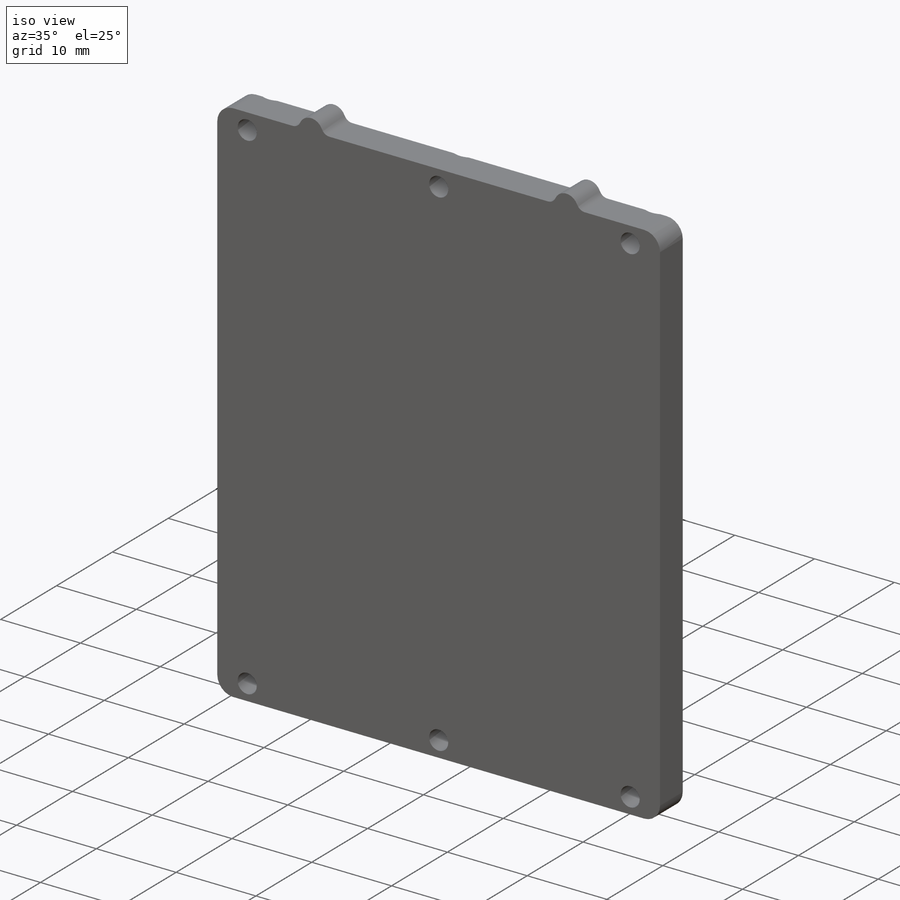
[diagram: iso view]
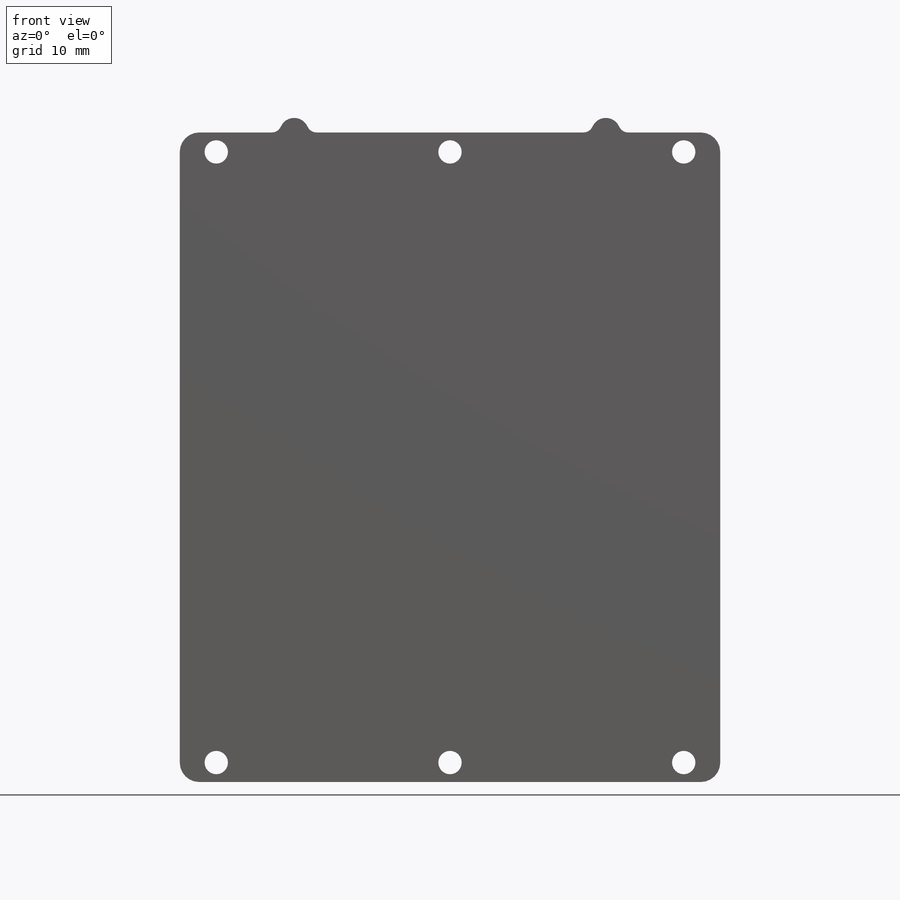
[diagram: front view]
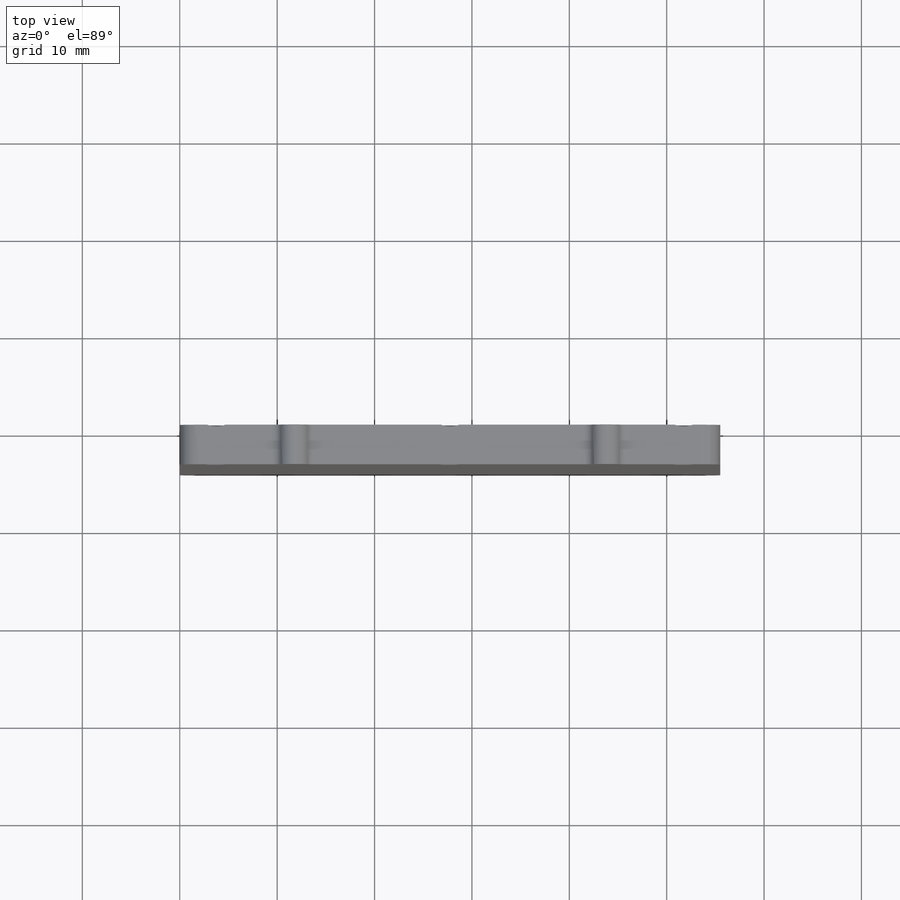
[diagram: top view]
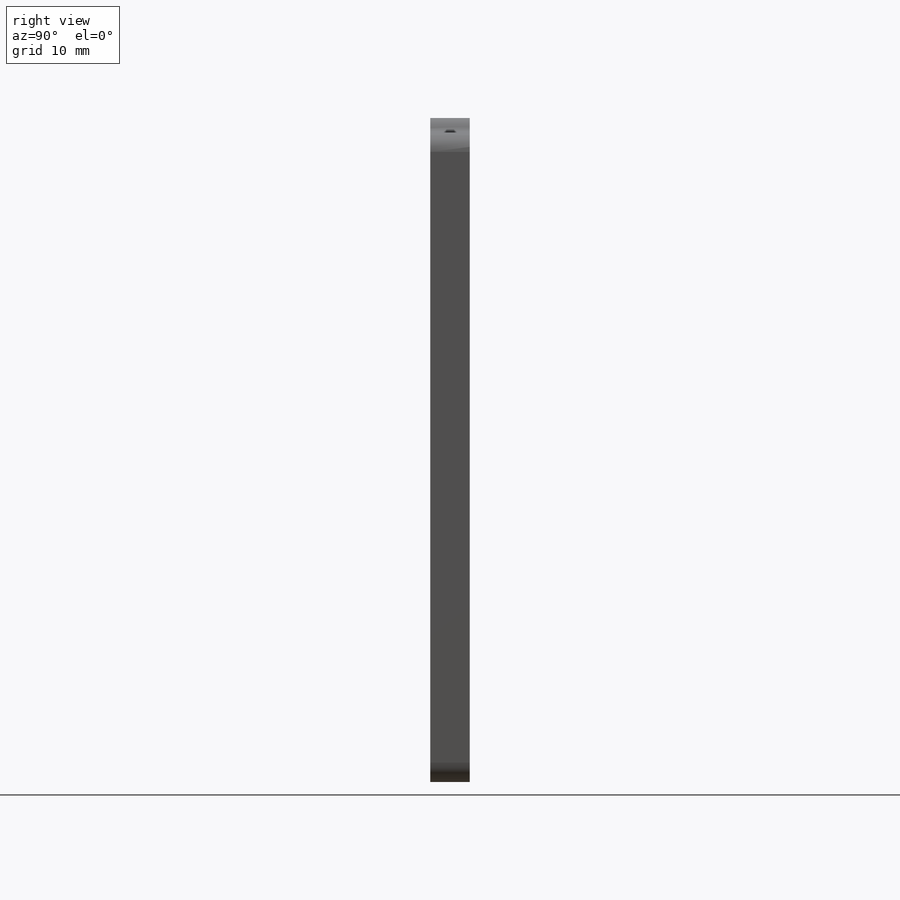
[diagram: right view]
SOLIDWORKS PART (.sldprt)
format: sldprt  version: not decoded by parser v0  size: 269,824 bytes
history: native  units: mm
features: sketch x6, extrude x2, hole x2, fillet x2, material x1 (+12 scaffold rows collapsed)
feature tree (25):
  scaffold x12  (default folders/planes/origin — collapsed)
  material  "Material <not specified>"
  sketch  "Sketch1"  dims[D1=55.5mm D2=66.7mm]
  extrude  "Boss-Extrude1"  Depth=4.064mm
  hole  "CSK for M2 Flat Head Machine Screw3"  Diameter=2.4mm Depth=4.064mm
  sketch  "Sketch6"  dims[c1.D1=1.5mm c1.D2=2.0mm c1.D3=68.0mm c1.D4=3.0mm c1.D5=3.0mm c2.D1=2.0mm c2.D5=68.0mm c2.D4=2.0mm c2.D3=2.0mm c3.D1=24.0mm c3.D2=62.7mm]
  sketch  "Sketch5"  dims[hole-wizard template sketch: 55 standard entries collapsed; hole parameters kept: c17.Thru Hole Depth=4.064mm c17.Near C'Sink Dia.=4.4mm c17.D4=~3.666174mm c17.Near C'Sink Angle=90.0deg]
  fillet  "Fillet1"  Radius=2mm
  sketch  "Sketch7"  dims[D2=1.5mm D1=32.0mm]
  extrude  "Boss-Extrude3"  [1 undecoded]
  fillet  "Fillet2"  Radius=1mm
  hole  "M2 Clearance Hole1"  Diameter=2.4mm Depth=4mm
  sketch  "Sketch9"  dims[D1=2.5mm]
  sketch  "Sketch8"  dims[hole-wizard template sketch: 60 standard entries collapsed; hole parameters kept: c18.Thru Hole Depth=4.0mm]
decode coverage: 11 of 12 modeling features carry decoded parameters
note: ~ marks probable driven/reference dimensions
note: 1 parameter value undecoded
note: suppression state not decoded; provenance and decode notes live in map.json
